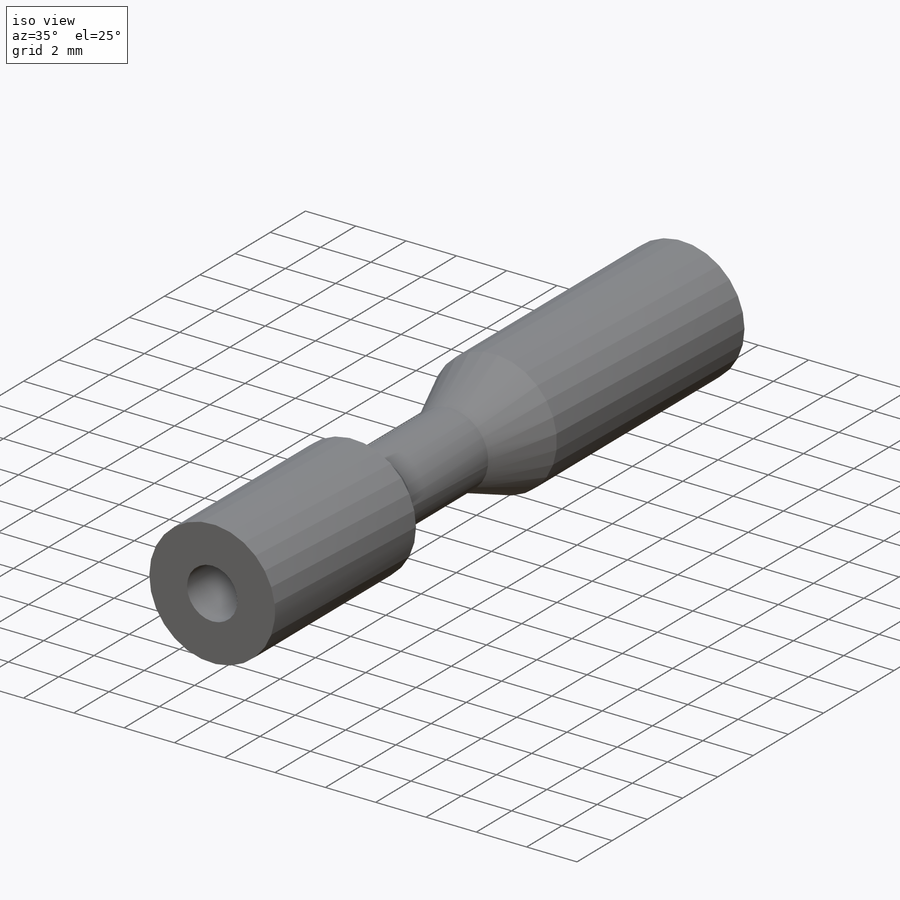
[diagram: iso view]
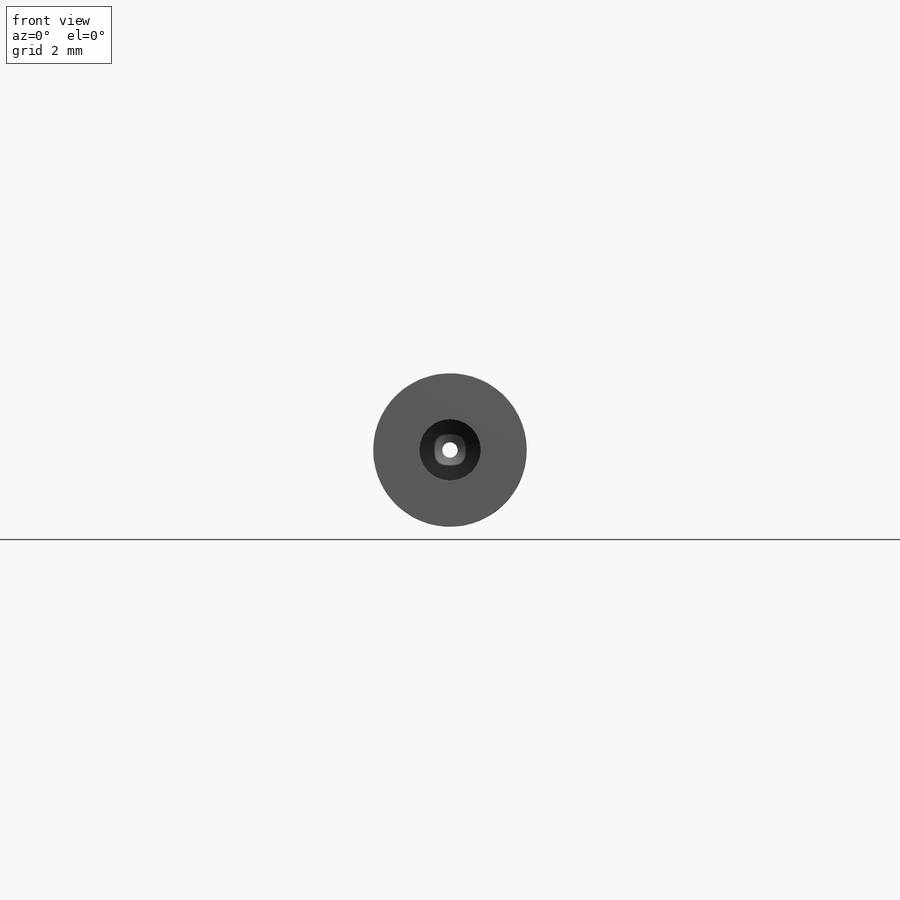
[diagram: front view]
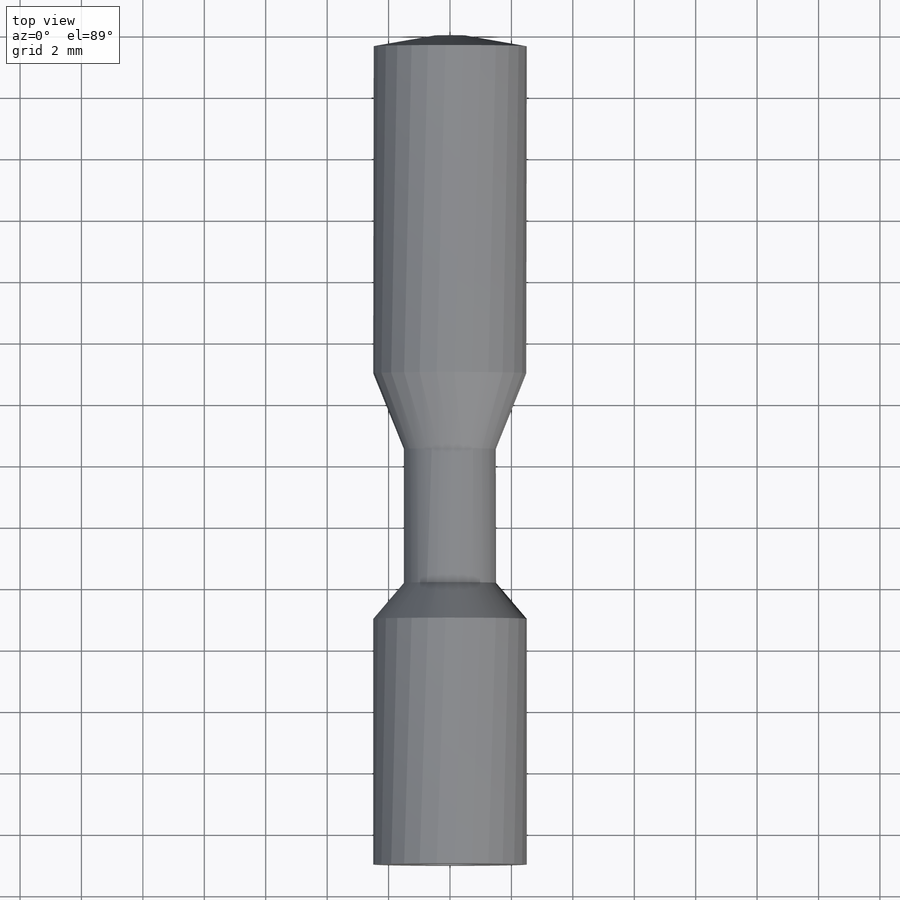
[diagram: top view]
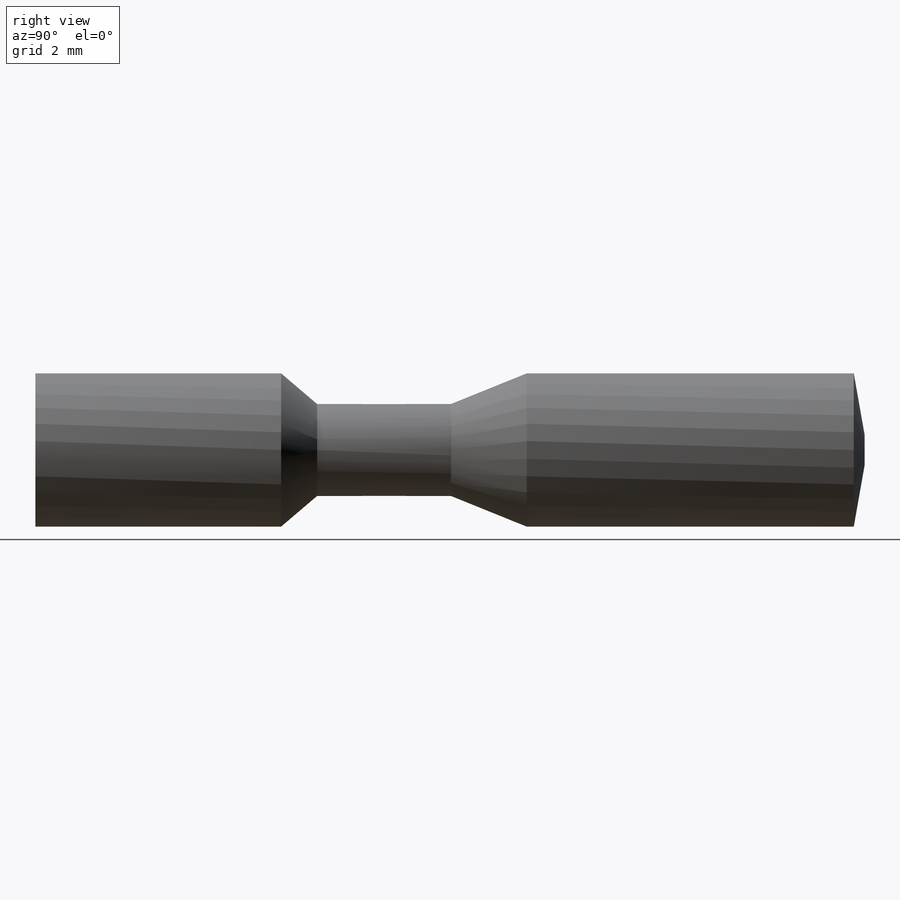
[diagram: right view]
SOLIDWORKS PART (.sldprt)
format: sldprt  version: not decoded by parser v0  size: 206,848 bytes
history: native  units: mm
features: sketch x5, material x1, extrude x1, cut_revolve x1, chamfer x1, hole x1, cut_extrude x1 (+16 scaffold rows collapsed)
feature tree (27):
  scaffold x16  (default folders/planes/origin — collapsed)
  material  "Material <not specified>"
  sketch  "Sketch1"  dims[D1=5.0mm]
  extrude  "Boss-Extrude1"  Depth=27mm
  sketch  "Sketch3"  dims[D1=1.5mm D2=11.0mm D3=8.0mm]
  cut_revolve  "Cut-Revolve1"  Angle=360deg
  chamfer  "Chamfer1"  Distance=2mm Angle=10deg
  hole  "Ø2.0 (2) Diameter Hole1"  Diameter=2mm Depth=26mm
  sketch  "Sketch5"
  sketch  "Sketch4"  dims[hole-wizard template sketch: 47 standard entries collapsed; hole parameters kept: c15.Hole Depth=26.0mm c15.D3=~14.816244mm c15.Drill Angle=118.0deg]
  sketch  "Sketch6"  dims[D1=0.5mm]
  cut_extrude  "Cut-Extrude1"  [1 undecoded]
decode coverage: 8 of 10 modeling features carry decoded parameters
note: ~ marks probable driven/reference dimensions
note: 1 parameter value undecoded
note: suppression state not decoded; provenance and decode notes live in map.json
